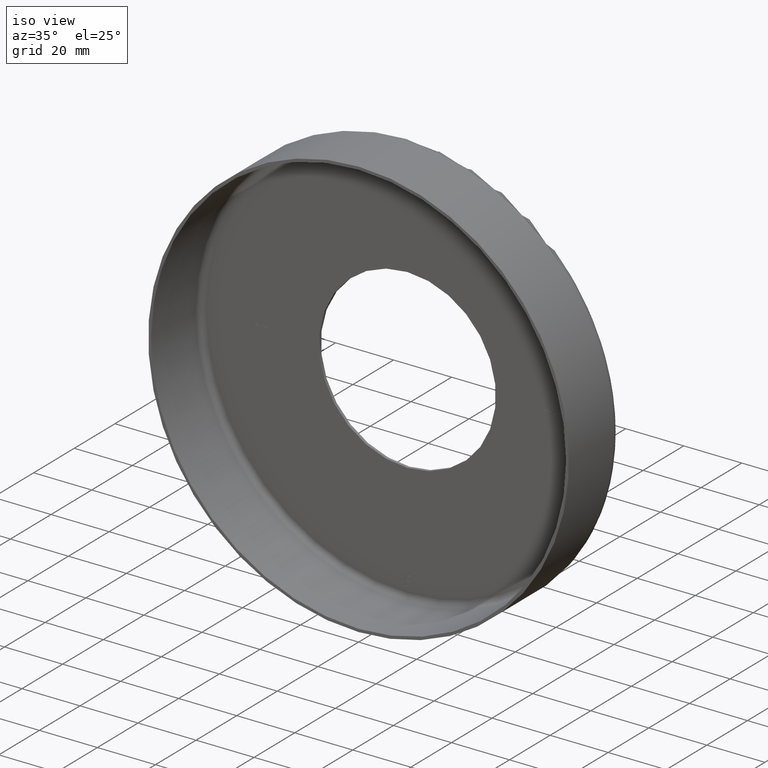
[diagram: clean part render]
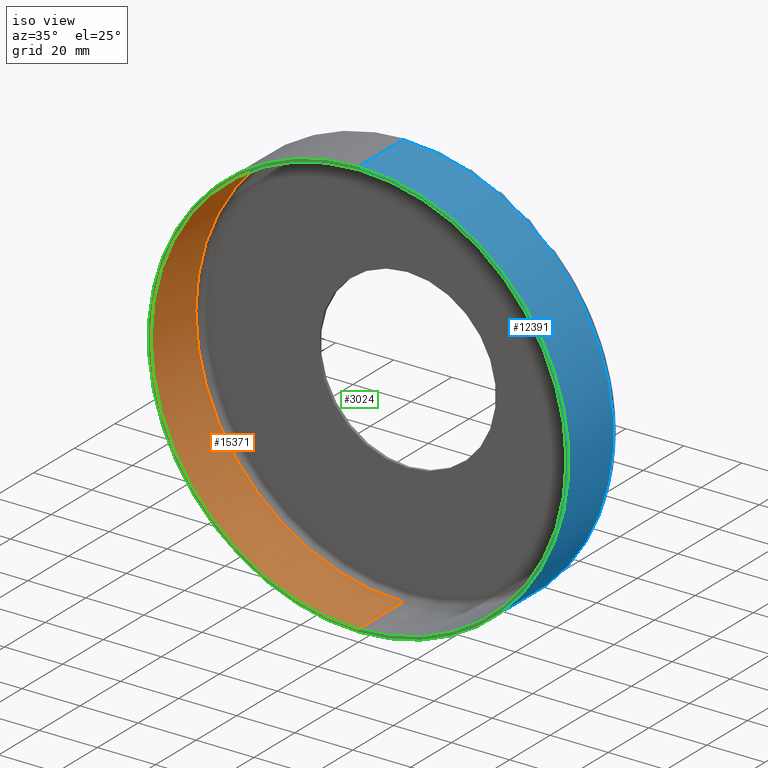
[diagram: same view with three faces highlighted in distinct colors, each labeled with its STEP entity id]
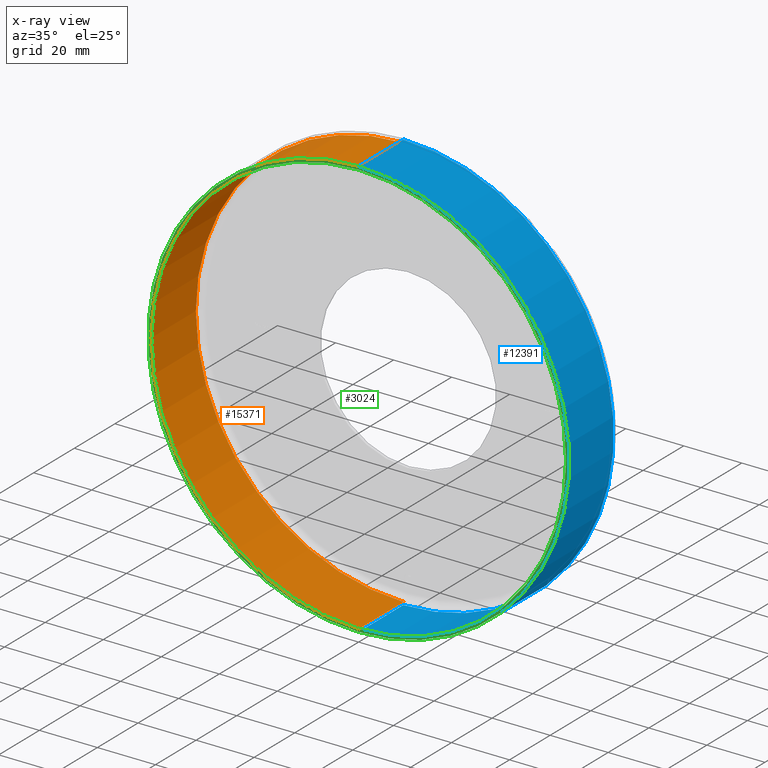
[diagram: x-ray of the same camera — body ghosted, the three highlighted faces saturated]
A machine part, iso view with three faces highlighted in distinct colors.
The next image is the same camera in x-ray (body ghosted, the three faces saturated) — at least one of them is partly hidden behind the body in this view.
Their STEP definitions:

[orange] entity #15371 — the highlighted cylindrical surface (partial cylindrical patch) has radius 71.5 mm, axis along (-0, -1, -0).
#1304 = AXIS2_PLACEMENT_3D ( 'NONE', #6454, #15003, #8826 ) ;
#1472 = VERTEX_POINT ( 'NONE', #15076 ) ;
#1797 = CARTESIAN_POINT ( 'NONE',  ( 8.756224613903574137E-15, 0.000000000000000000, 71.50000000000000000 ) ) ;
#1854 = AXIS2_PLACEMENT_3D ( 'NONE', #15553, #13176, #8295 ) ;
#2523 = CIRCLE ( 'NONE', #1304, 71.50000000000000000 ) ;
#3102 = DIRECTION ( 'NONE',  ( -0.000000000000000000, -1.000000000000000000, -0.000000000000000000 ) ) ;
#3473 = CARTESIAN_POINT ( 'NONE',  ( 0.000000000000000000, 22.00000000000000355, 0.000000000000000000 ) ) ;
#3599 = ORIENTED_EDGE ( 'NONE', *, *, #9934, .T. ) ;
#3860 = CARTESIAN_POINT ( 'NONE',  ( 8.756224613903574137E-15, -1.224646799147353207E-16, 71.50000000000000000 ) ) ;
#4045 = LINE ( 'NONE', #13978, #5967 ) ;
#4656 = EDGE_CURVE ( 'NONE', #1472, #6275, #6336, .T. ) ;
#5338 = EDGE_CURVE ( 'NONE', #1472, #7325, #10997, .T. ) ;
#5367 = VECTOR ( 'NONE', #10424, 1000.000000000000000 ) ;
#5518 = CARTESIAN_POINT ( 'NONE',  ( 0.000000000000000000, -1.224646799147353207E-16, -71.50000000000000000 ) ) ;
#5838 = ORIENTED_EDGE ( 'NONE', *, *, #5338, .T. ) ;
#5963 = DIRECTION ( 'NONE',  ( -0.000000000000000000, -1.000000000000000000, -0.000000000000000000 ) ) ;
#5967 = VECTOR ( 'NONE', #3102, 1000.000000000000000 ) ;
#6275 = VERTEX_POINT ( 'NONE', #15649 ) ;
#6336 = CIRCLE ( 'NONE', #12051, 71.50000000000000000 ) ;
#6454 = CARTESIAN_POINT ( 'NONE',  ( 0.000000000000000000, -1.224646799147353207E-16, 0.000000000000000000 ) ) ;
#6891 = FACE_OUTER_BOUND ( 'NONE', #8618, .T. ) ;
#7325 = VERTEX_POINT ( 'NONE', #3860 ) ;
#7382 = ORIENTED_EDGE ( 'NONE', *, *, #10093, .F. ) ;
#7397 = ORIENTED_EDGE ( 'NONE', *, *, #4656, .F. ) ;
#7848 = CYLINDRICAL_SURFACE ( 'NONE', #1854, 71.50000000000000000 ) ;
#8295 = DIRECTION ( 'NONE',  ( 0.000000000000000000, 0.000000000000000000, -1.000000000000000000 ) ) ;
#8350 = DIRECTION ( 'NONE',  ( 0.000000000000000000, 0.000000000000000000, -1.000000000000000000 ) ) ;
#8618 = EDGE_LOOP ( 'NONE', ( #7397, #5838, #3599, #7382 ) ) ;
#8826 = DIRECTION ( 'NONE',  ( 0.000000000000000000, 0.000000000000000000, -1.000000000000000000 ) ) ;
#9934 = EDGE_CURVE ( 'NONE', #7325, #10891, #2523, .T. ) ;
#10093 = EDGE_CURVE ( 'NONE', #6275, #10891, #4045, .T. ) ;
#10424 = DIRECTION ( 'NONE',  ( -0.000000000000000000, -1.000000000000000000, -0.000000000000000000 ) ) ;
#10891 = VERTEX_POINT ( 'NONE', #5518 ) ;
#10997 = LINE ( 'NONE', #1797, #5367 ) ;
#12051 = AXIS2_PLACEMENT_3D ( 'NONE', #3473, #5963, #8350 ) ;
#13176 = DIRECTION ( 'NONE',  ( -0.000000000000000000, -1.000000000000000000, -0.000000000000000000 ) ) ;
#13978 = CARTESIAN_POINT ( 'NONE',  ( 0.000000000000000000, 0.000000000000000000, -71.50000000000000000 ) ) ;
#15003 = DIRECTION ( 'NONE',  ( -0.000000000000000000, -1.000000000000000000, -0.000000000000000000 ) ) ;
#15076 = CARTESIAN_POINT ( 'NONE',  ( 8.756224613903574137E-15, 22.00000000000000355, 71.50000000000000000 ) ) ;
#15371 = ADVANCED_FACE ( 'NONE', ( #6891 ), #7848, .F. ) ;
#15553 = CARTESIAN_POINT ( 'NONE',  ( 0.000000000000000000, 0.000000000000000000, 0.000000000000000000 ) ) ;
#15649 = CARTESIAN_POINT ( 'NONE',  ( 0.000000000000000000, 22.00000000000000355, -71.50000000000000000 ) ) ;

[blue] entity #12391 — the highlighted cylindrical surface (partial cylindrical patch) has radius 72.5 mm, axis along (-0, -1, -0).
#270 = DIRECTION ( 'NONE',  ( -0.000000000000000000, -1.000000000000000000, -0.000000000000000000 ) ) ;
#438 = VERTEX_POINT ( 'NONE', #5345 ) ;
#655 = EDGE_LOOP ( 'NONE', ( #9269, #9781, #2983, #12690 ) ) ;
#955 = LINE ( 'NONE', #10705, #12175 ) ;
#2169 = VERTEX_POINT ( 'NONE', #4624 ) ;
#2500 = DIRECTION ( 'NONE',  ( 0.000000000000000000, 0.000000000000000000, -1.000000000000000000 ) ) ;
#2983 = ORIENTED_EDGE ( 'NONE', *, *, #14263, .F. ) ;
#3815 = FACE_OUTER_BOUND ( 'NONE', #655, .T. ) ;
#3864 = EDGE_CURVE ( 'NONE', #2169, #8927, #955, .T. ) ;
#4624 = CARTESIAN_POINT ( 'NONE',  ( 8.878689293818309285E-15, 22.00000000000000355, 72.50000000000000000 ) ) ;
#4842 = CARTESIAN_POINT ( 'NONE',  ( 0.000000000000000000, 0.000000000000000000, 0.000000000000000000 ) ) ;
#4970 = EDGE_CURVE ( 'NONE', #6599, #438, #13316, .T. ) ;
#5345 = CARTESIAN_POINT ( 'NONE',  ( 0.000000000000000000, 0.000000000000000000, -72.50000000000000000 ) ) ;
#6481 = EDGE_CURVE ( 'NONE', #6599, #2169, #12912, .T. ) ;
#6599 = VERTEX_POINT ( 'NONE', #15351 ) ;
#6912 = DIRECTION ( 'NONE',  ( -0.000000000000000000, -1.000000000000000000, -0.000000000000000000 ) ) ;
#7459 = CARTESIAN_POINT ( 'NONE',  ( 0.000000000000000000, 22.00000000000000355, 0.000000000000000000 ) ) ;
#8539 = CARTESIAN_POINT ( 'NONE',  ( 0.000000000000000000, 0.000000000000000000, -72.50000000000000000 ) ) ;
#8927 = VERTEX_POINT ( 'NONE', #13367 ) ;
#9229 = CIRCLE ( 'NONE', #9899, 72.50000000000000000 ) ;
#9269 = ORIENTED_EDGE ( 'NONE', *, *, #6481, .T. ) ;
#9701 = DIRECTION ( 'NONE',  ( 0.000000000000000000, 0.000000000000000000, -1.000000000000000000 ) ) ;
#9781 = ORIENTED_EDGE ( 'NONE', *, *, #3864, .T. ) ;
#9899 = AXIS2_PLACEMENT_3D ( 'NONE', #4842, #12152, #9701 ) ;
#10705 = CARTESIAN_POINT ( 'NONE',  ( 8.878689293818309285E-15, 0.000000000000000000, 72.50000000000000000 ) ) ;
#10808 = VECTOR ( 'NONE', #13848, 1000.000000000000000 ) ;
#12152 = DIRECTION ( 'NONE',  ( -0.000000000000000000, -1.000000000000000000, -0.000000000000000000 ) ) ;
#12175 = VECTOR ( 'NONE', #6912, 1000.000000000000000 ) ;
#12391 = ADVANCED_FACE ( 'NONE', ( #3815 ), #14658, .T. ) ;
#12560 = AXIS2_PLACEMENT_3D ( 'NONE', #7459, #270, #2500 ) ;
#12690 = ORIENTED_EDGE ( 'NONE', *, *, #4970, .F. ) ;
#12769 = DIRECTION ( 'NONE',  ( -0.000000000000000000, -1.000000000000000000, -0.000000000000000000 ) ) ;
#12912 = CIRCLE ( 'NONE', #12560, 72.50000000000000000 ) ;
#13316 = LINE ( 'NONE', #8539, #10808 ) ;
#13367 = CARTESIAN_POINT ( 'NONE',  ( 8.878689293818309285E-15, 0.000000000000000000, 72.50000000000000000 ) ) ;
#13848 = DIRECTION ( 'NONE',  ( -0.000000000000000000, -1.000000000000000000, -0.000000000000000000 ) ) ;
#13960 = CARTESIAN_POINT ( 'NONE',  ( 0.000000000000000000, 0.000000000000000000, 0.000000000000000000 ) ) ;
#14263 = EDGE_CURVE ( 'NONE', #438, #8927, #9229, .T. ) ;
#14658 = CYLINDRICAL_SURFACE ( 'NONE', #14676, 72.50000000000000000 ) ;
#14676 = AXIS2_PLACEMENT_3D ( 'NONE', #13960, #12769, #15299 ) ;
#15299 = DIRECTION ( 'NONE',  ( 0.000000000000000000, 0.000000000000000000, -1.000000000000000000 ) ) ;
#15351 = CARTESIAN_POINT ( 'NONE',  ( 0.000000000000000000, 22.00000000000000355, -72.50000000000000000 ) ) ;

[green] entity #3024 — the highlighted planar face has unit normal (0, -1, -0).
#37 = CARTESIAN_POINT ( 'NONE',  ( 0.000000000000000000, 0.000000000000000000, 0.000000000000000000 ) ) ;
#438 = VERTEX_POINT ( 'NONE', #5345 ) ;
#532 = CIRCLE ( 'NONE', #13622, 71.50000000000000000 ) ;
#1304 = AXIS2_PLACEMENT_3D ( 'NONE', #6454, #15003, #8826 ) ;
#1348 = DIRECTION ( 'NONE',  ( -0.000000000000000000, -1.000000000000000000, -0.000000000000000000 ) ) ;
#1674 = DIRECTION ( 'NONE',  ( 0.000000000000000000, 0.000000000000000000, -1.000000000000000000 ) ) ;
#2252 = EDGE_LOOP ( 'NONE', ( #6979, #14618 ) ) ;
#2523 = CIRCLE ( 'NONE', #1304, 71.50000000000000000 ) ;
#3024 = ADVANCED_FACE ( 'NONE', ( #7151, #6752 ), #11290, .T. ) ;
#3860 = CARTESIAN_POINT ( 'NONE',  ( 8.756224613903574137E-15, -1.224646799147353207E-16, 71.50000000000000000 ) ) ;
#4842 = CARTESIAN_POINT ( 'NONE',  ( 0.000000000000000000, 0.000000000000000000, 0.000000000000000000 ) ) ;
#5345 = CARTESIAN_POINT ( 'NONE',  ( 0.000000000000000000, 0.000000000000000000, -72.50000000000000000 ) ) ;
#5518 = CARTESIAN_POINT ( 'NONE',  ( 0.000000000000000000, -1.224646799147353207E-16, -71.50000000000000000 ) ) ;
#6150 = DIRECTION ( 'NONE',  ( 0.000000000000000000, 0.000000000000000000, -1.000000000000000000 ) ) ;
#6406 = EDGE_CURVE ( 'NONE', #10891, #7325, #532, .T. ) ;
#6454 = CARTESIAN_POINT ( 'NONE',  ( 0.000000000000000000, -1.224646799147353207E-16, 0.000000000000000000 ) ) ;
#6544 = AXIS2_PLACEMENT_3D ( 'NONE', #15065, #10305, #1674 ) ;
#6752 = FACE_BOUND ( 'NONE', #2252, .T. ) ;
#6979 = ORIENTED_EDGE ( 'NONE', *, *, #6406, .F. ) ;
#7151 = FACE_OUTER_BOUND ( 'NONE', #8972, .T. ) ;
#7325 = VERTEX_POINT ( 'NONE', #3860 ) ;
#8223 = CIRCLE ( 'NONE', #9071, 72.50000000000000000 ) ;
#8716 = ORIENTED_EDGE ( 'NONE', *, *, #15802, .T. ) ;
#8826 = DIRECTION ( 'NONE',  ( 0.000000000000000000, 0.000000000000000000, -1.000000000000000000 ) ) ;
#8927 = VERTEX_POINT ( 'NONE', #13367 ) ;
#8972 = EDGE_LOOP ( 'NONE', ( #12822, #8716 ) ) ;
#9071 = AXIS2_PLACEMENT_3D ( 'NONE', #37, #1348, #6150 ) ;
#9229 = CIRCLE ( 'NONE', #9899, 72.50000000000000000 ) ;
#9701 = DIRECTION ( 'NONE',  ( 0.000000000000000000, 0.000000000000000000, -1.000000000000000000 ) ) ;
#9899 = AXIS2_PLACEMENT_3D ( 'NONE', #4842, #12152, #9701 ) ;
#9934 = EDGE_CURVE ( 'NONE', #7325, #10891, #2523, .T. ) ;
#10305 = DIRECTION ( 'NONE',  ( 0.000000000000000000, -1.000000000000000000, -0.000000000000000000 ) ) ;
#10891 = VERTEX_POINT ( 'NONE', #5518 ) ;
#11290 = PLANE ( 'NONE',  #6544 ) ;
#12152 = DIRECTION ( 'NONE',  ( -0.000000000000000000, -1.000000000000000000, -0.000000000000000000 ) ) ;
#12345 = DIRECTION ( 'NONE',  ( -0.000000000000000000, -1.000000000000000000, -0.000000000000000000 ) ) ;
#12822 = ORIENTED_EDGE ( 'NONE', *, *, #14263, .T. ) ;
#13367 = CARTESIAN_POINT ( 'NONE',  ( 8.878689293818309285E-15, 0.000000000000000000, 72.50000000000000000 ) ) ;
#13433 = CARTESIAN_POINT ( 'NONE',  ( 0.000000000000000000, -1.224646799147353207E-16, 0.000000000000000000 ) ) ;
#13595 = DIRECTION ( 'NONE',  ( 0.000000000000000000, 0.000000000000000000, -1.000000000000000000 ) ) ;
#13622 = AXIS2_PLACEMENT_3D ( 'NONE', #13433, #12345, #13595 ) ;
#14263 = EDGE_CURVE ( 'NONE', #438, #8927, #9229, .T. ) ;
#14618 = ORIENTED_EDGE ( 'NONE', *, *, #9934, .F. ) ;
#15003 = DIRECTION ( 'NONE',  ( -0.000000000000000000, -1.000000000000000000, -0.000000000000000000 ) ) ;
#15065 = CARTESIAN_POINT ( 'NONE',  ( 71.50000000000000000, -6.123233995736766036E-17, 0.000000000000000000 ) ) ;
#15802 = EDGE_CURVE ( 'NONE', #8927, #438, #8223, .T. ) ;